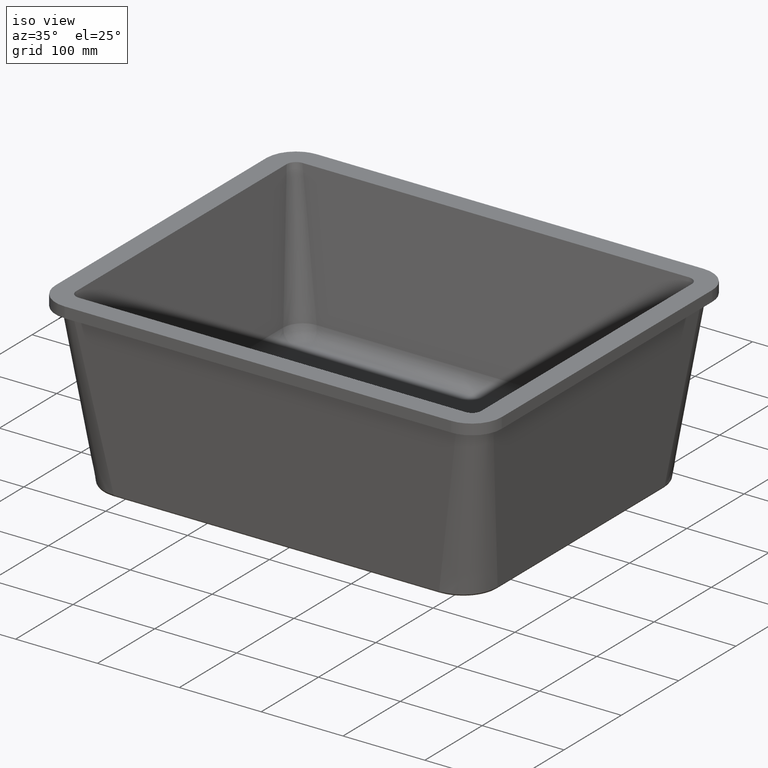
[diagram: clean part render]
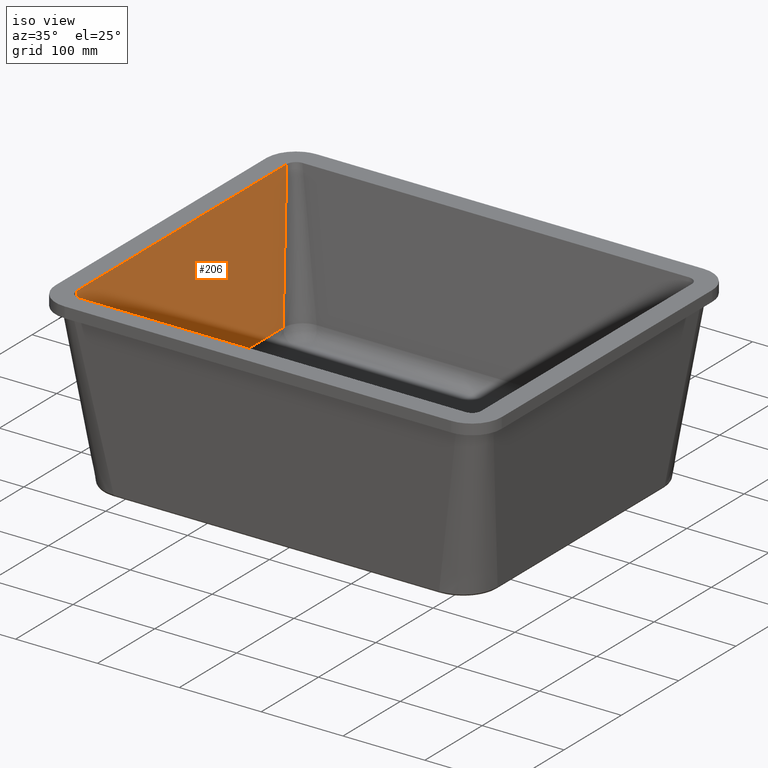
[diagram: same view with one face highlighted and labeled with its STEP entity id]
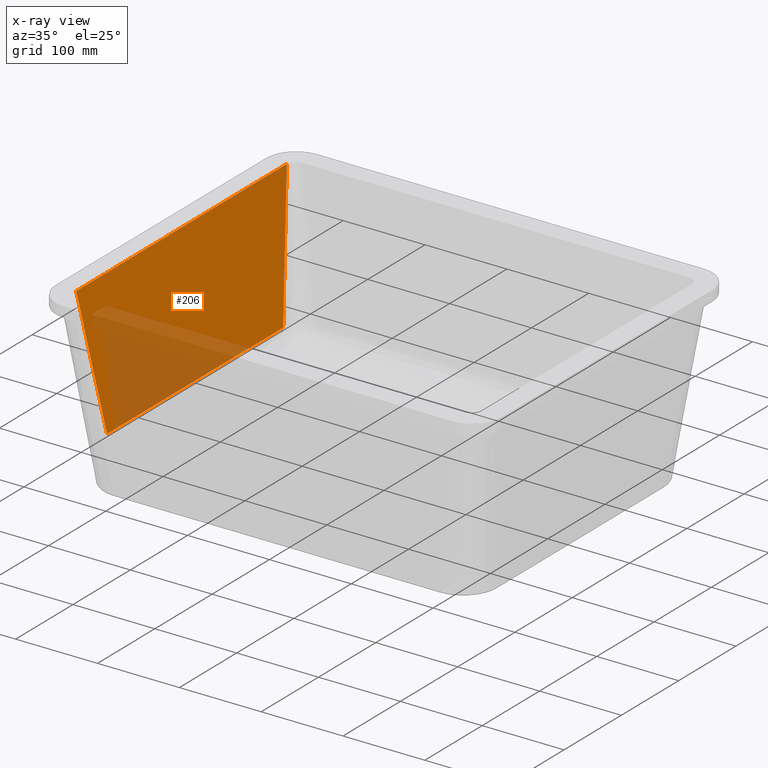
[diagram: x-ray of the same camera — body ghosted, the highlighted face saturated]
A machine part, iso view. The second image highlights one B-rep face of the part: STEP entity #206.
The next image is the same camera in x-ray: the body ghosted, the highlighted face saturated — about 30% of this face is hidden behind the body in this view.
In plain terms, the highlighted planar face has unit normal (-0.995, 0, -0.1004).
Its self-contained STEP definition (entity closure, byte-faithful):
#52=PLANE('',#1216);
#66=LINE('',#15787,#90);
#90=VECTOR('',#1266,1.);
#206=ADVANCED_FACE('',(#277),#52,.F.);
#277=FACE_OUTER_BOUND('',#347,.T.);
#347=EDGE_LOOP('',(#583,#584,#585,#586,#587));
#583=ORIENTED_EDGE('',*,*,#988,.F.);
#584=ORIENTED_EDGE('',*,*,#986,.T.);
#585=ORIENTED_EDGE('',*,*,#968,.T.);
#586=ORIENTED_EDGE('',*,*,#970,.T.);
#587=ORIENTED_EDGE('',*,*,#989,.F.);
#825=VERTEX_POINT('',#14554);
#826=VERTEX_POINT('',#14700);
#827=VERTEX_POINT('',#14865);
#835=VERTEX_POINT('',#15731);
#836=VERTEX_POINT('',#15788);
#968=EDGE_CURVE('',#825,#826,#1145,.T.);
#970=EDGE_CURVE('',#826,#827,#1147,.T.);
#986=EDGE_CURVE('',#835,#825,#1161,.T.);
#988=EDGE_CURVE('',#835,#836,#66,.T.);
#989=EDGE_CURVE('',#836,#827,#1163,.T.);
#1145=B_SPLINE_CURVE_WITH_KNOTS('',3,(#14686,#14687,#14688,#14689,#14690,
#14691,#14692,#14693,#14694,#14695,#14696,#14697,#14698,#14699),
 .UNSPECIFIED.,.F.,.F.,(4,1,1,1,1,1,1,1,1,1,1,4),(0.,0.0625,0.09375,0.125,
0.1875,0.25,0.3125,0.375,0.4375,0.5,0.75,1.),.UNSPECIFIED.);
#1147=B_SPLINE_CURVE_WITH_KNOTS('',3,(#14851,#14852,#14853,#14854,#14855,
#14856,#14857,#14858,#14859,#14860,#14861,#14862,#14863,#14864),
 .UNSPECIFIED.,.F.,.F.,(4,1,1,1,1,1,1,1,1,1,1,4),(0.,0.25,0.5,0.5625,0.625,
0.6875,0.75,0.8125,0.875,0.90625,0.9375,1.),.UNSPECIFIED.);
#1161=B_SPLINE_CURVE_WITH_KNOTS('',3,(#15723,#15724,#15725,#15726,#15727,
#15728,#15729,#15730),.UNSPECIFIED.,.F.,.F.,(4,2,2,4),(0.,0.181818181818182,
0.454545454545455,1.),.UNSPECIFIED.);
#1163=B_SPLINE_CURVE_WITH_KNOTS('',3,(#15789,#15790,#15791,#15792,#15793,
#15794,#15795,#15796),.UNSPECIFIED.,.F.,.F.,(4,2,2,4),(0.,0.181818181818182,
0.454545454545455,1.),.UNSPECIFIED.);
#1216=AXIS2_PLACEMENT_3D('',#15797,#1267,#1268);
#1266=DIRECTION('',(0.,1.,0.));
#1267=DIRECTION('',(-0.994950157147382,0.,-0.100370238578975));
#1268=DIRECTION('',(0.100370238578975,0.,-0.994950157147382));
#14554=CARTESIAN_POINT('',(-230.884217562772,-153.719689496109,-164.708937441336));
#14686=CARTESIAN_POINT('',(-230.884217562772,-153.719689496109,-164.708937441336));
#14687=CARTESIAN_POINT('',(-230.884217562772,-150.51719596494,-164.708937441336));
#14688=CARTESIAN_POINT('',(-230.884217562772,-145.713455668188,-164.708937441336));
#14689=CARTESIAN_POINT('',(-230.884217562772,-139.30846860585,-164.708937441336));
#14690=CARTESIAN_POINT('',(-230.884217562772,-132.903481543513,-164.708937441336));
#14691=CARTESIAN_POINT('',(-230.884217562772,-124.89724771559,-164.708937441336));
#14692=CARTESIAN_POINT('',(-230.884217562772,-115.289767122083,-164.708937441336));
#14693=CARTESIAN_POINT('',(-230.884217562772,-105.682286528576,-164.708937441336));
#14694=CARTESIAN_POINT('',(-230.884217562772,-96.074805935069,-164.708937441336));
#14695=CARTESIAN_POINT('',(-230.884217562772,-86.4673253415616,-164.708937441336));
#14696=CARTESIAN_POINT('',(-230.884217562772,-67.2523641545471,-164.708937441336));
#14697=CARTESIAN_POINT('',(-230.884217562772,-38.4299223740267,-164.708937441336));
#14698=CARTESIAN_POINT('',(-230.884217562772,-12.8099741246758,-164.708937441336));
#14699=CARTESIAN_POINT('',(-230.884217562772,-2.8421709430404E-14,-164.708937441336));
#14700=CARTESIAN_POINT('',(-230.884217562772,0.,-164.708937441336));
#14851=CARTESIAN_POINT('',(-230.884217562772,2.8421709430404E-14,-164.708937441336));
#14852=CARTESIAN_POINT('',(-230.884217562772,12.8099741246758,-164.708937441336));
#14853=CARTESIAN_POINT('',(-230.884217562772,38.4299223740267,-164.708937441336));
#14854=CARTESIAN_POINT('',(-230.884217562772,67.2523641545471,-164.708937441336));
#14855=CARTESIAN_POINT('',(-230.884217562772,86.4673253415616,-164.708937441336));
#14856=CARTESIAN_POINT('',(-230.884217562772,96.074805935069,-164.708937441336));
#14857=CARTESIAN_POINT('',(-230.884217562772,105.682286528576,-164.708937441336));
#14858=CARTESIAN_POINT('',(-230.884217562772,115.289767122083,-164.708937441336));
#14859=CARTESIAN_POINT('',(-230.884217562772,124.89724771559,-164.708937441336));
#14860=CARTESIAN_POINT('',(-230.884217562772,132.903481543513,-164.708937441336));
#14861=CARTESIAN_POINT('',(-230.884217562772,139.30846860585,-164.708937441336));
#14862=CARTESIAN_POINT('',(-230.884217562772,145.713455668188,-164.708937441336));
#14863=CARTESIAN_POINT('',(-230.884217562772,150.51719596494,-164.708937441336));
#14864=CARTESIAN_POINT('',(-230.884217562772,153.719689496109,-164.708937441336));
#14865=CARTESIAN_POINT('',(-230.884217562772,153.719689496109,-164.708937441336));
#15723=CARTESIAN_POINT('',(-261.079689193466,-208.250025748442,134.612750635148));
#15724=CARTESIAN_POINT('',(-256.816877368901,-200.551766717519,92.3563471953603));
#15725=CARTESIAN_POINT('',(-252.554065544336,-192.853507686596,50.0999437555723));
#15726=CARTESIAN_POINT('',(-241.897035982923,-173.607860109289,-55.5410648438978));
#15727=CARTESIAN_POINT('',(-235.502818246075,-162.060471562905,-118.92567000358));
#15728=CARTESIAN_POINT('',(-216.320165035531,-127.418305923751,-309.079485482626));
#15729=CARTESIAN_POINT('',(-203.531729561835,-104.323528830982,-435.84869580199));
#15730=CARTESIAN_POINT('',(-190.743294088139,-81.2287517382133,-562.617906121354));
#15731=CARTESIAN_POINT('',(-247.50000000003,-183.726314810027,-1.39970500467879E-12));
#15787=CARTESIAN_POINT('',(-247.50000000003,206.,0.));
#15788=CARTESIAN_POINT('',(-247.50000000003,183.726314810027,-1.43219220369344E-12));
#15789=CARTESIAN_POINT('',(-261.079689193466,208.250025748442,134.612750635148));
#15790=CARTESIAN_POINT('',(-256.816877368901,200.551766717519,92.3563471953603));
#15791=CARTESIAN_POINT('',(-252.554065544336,192.853507686596,50.0999437555723));
#15792=CARTESIAN_POINT('',(-241.897035982923,173.607860109289,-55.5410648438978));
#15793=CARTESIAN_POINT('',(-235.502818246075,162.060471562905,-118.92567000358));
#15794=CARTESIAN_POINT('',(-216.320165035531,127.418305923751,-309.079485482626));
#15795=CARTESIAN_POINT('',(-203.531729561835,104.323528830982,-435.84869580199));
#15796=CARTESIAN_POINT('',(-190.743294088139,81.2287517382133,-562.617906121354));
#15797=CARTESIAN_POINT('',(-230.726992852863,206.,-166.267474633701));